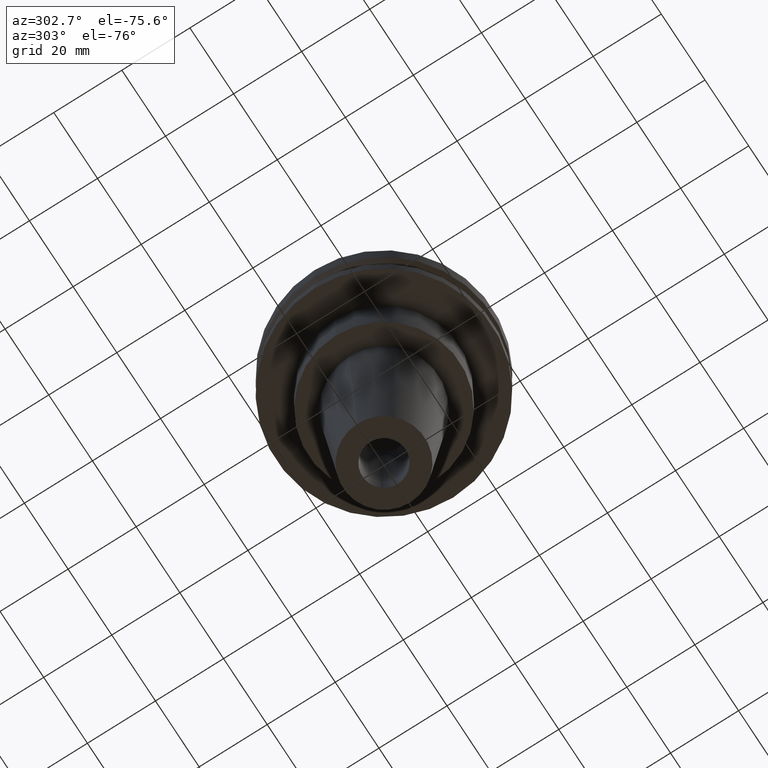
[diagram: clean part render]
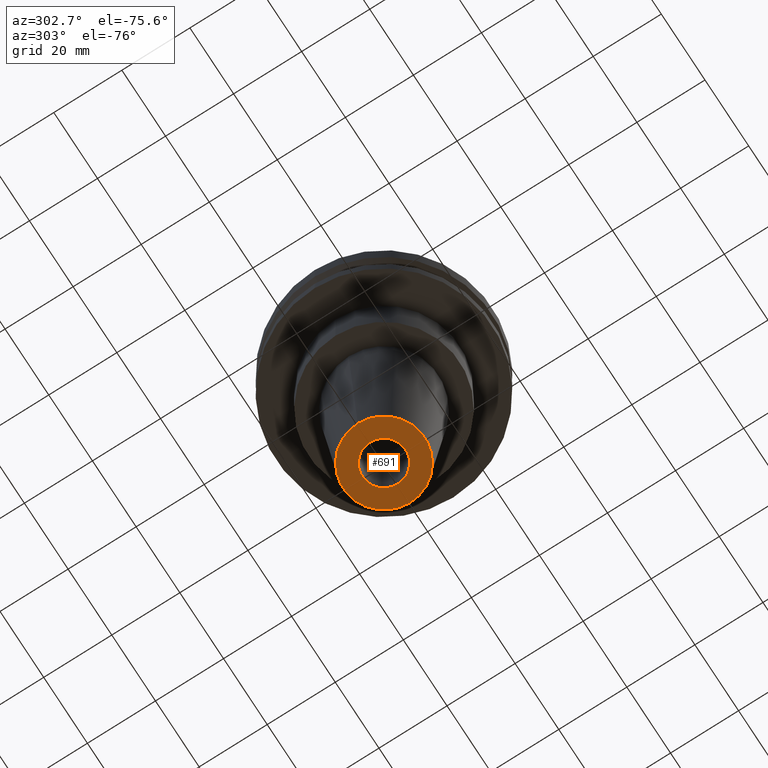
[diagram: same view with one face highlighted and labeled with its STEP entity id]
A machine part, auxiliary view. The second image highlights one B-rep face of the part: STEP entity #691.
In plain terms, the highlighted planar face has unit normal (0, -0, 1).
Its self-contained STEP definition (entity closure, byte-faithful):
#29 = VERTEX_POINT ( 'NONE', #834 ) ;
#37 = ORIENTED_EDGE ( 'NONE', *, *, #390, .T. ) ;
#60 = EDGE_CURVE ( 'NONE', #372, #29, #399, .T. ) ;
#109 = ORIENTED_EDGE ( 'NONE', *, *, #60, .T. ) ;
#116 = CARTESIAN_POINT ( 'NONE',  ( 0.000000000000000000, 0.000000000000000000, -88.89999999999999147 ) ) ;
#141 = PLANE ( 'NONE',  #490 ) ;
#144 = DIRECTION ( 'NONE',  ( 1.000000000000000000, 0.000000000000000000, 0.000000000000000000 ) ) ;
#158 = DIRECTION ( 'NONE',  ( -0.000000000000000000, -0.000000000000000000, 1.000000000000000000 ) ) ;
#161 = CARTESIAN_POINT ( 'NONE',  ( 12.00000000000000000, 0.000000000000000000, -88.89999999999999147 ) ) ;
#172 = CARTESIAN_POINT ( 'NONE',  ( 0.000000000000000000, 0.000000000000000000, -88.89999999999999147 ) ) ;
#271 = DIRECTION ( 'NONE',  ( -0.000000000000000000, -0.000000000000000000, 1.000000000000000000 ) ) ;
#274 = AXIS2_PLACEMENT_3D ( 'NONE', #116, #271, #454 ) ;
#290 = DIRECTION ( 'NONE',  ( 1.000000000000000000, 0.000000000000000000, 0.000000000000000000 ) ) ;
#323 = DIRECTION ( 'NONE',  ( -0.000000000000000000, -0.000000000000000000, 1.000000000000000000 ) ) ;
#345 = FACE_OUTER_BOUND ( 'NONE', #643, .T. ) ;
#354 = CIRCLE ( 'NONE', #274, 12.00000000000000000 ) ;
#372 = VERTEX_POINT ( 'NONE', #819 ) ;
#390 = EDGE_CURVE ( 'NONE', #29, #372, #519, .T. ) ;
#394 = AXIS2_PLACEMENT_3D ( 'NONE', #604, #158, #144 ) ;
#399 = CIRCLE ( 'NONE', #743, 6.349999999999999645 ) ;
#417 = ORIENTED_EDGE ( 'NONE', *, *, #709, .F. ) ;
#454 = DIRECTION ( 'NONE',  ( 1.000000000000000000, 0.000000000000000000, 0.000000000000000000 ) ) ;
#470 = CARTESIAN_POINT ( 'NONE',  ( 0.000000000000000000, 12.00000000000000000, -88.89999999999999147 ) ) ;
#490 = AXIS2_PLACEMENT_3D ( 'NONE', #470, #609, #290 ) ;
#504 = CIRCLE ( 'NONE', #394, 12.00000000000000000 ) ;
#519 = CIRCLE ( 'NONE', #737, 6.349999999999999645 ) ;
#548 = EDGE_LOOP ( 'NONE', ( #109, #37 ) ) ;
#604 = CARTESIAN_POINT ( 'NONE',  ( 0.000000000000000000, 0.000000000000000000, -88.89999999999999147 ) ) ;
#605 = ORIENTED_EDGE ( 'NONE', *, *, #629, .F. ) ;
#609 = DIRECTION ( 'NONE',  ( 0.000000000000000000, -0.000000000000000000, 1.000000000000000000 ) ) ;
#629 = EDGE_CURVE ( 'NONE', #826, #789, #354, .T. ) ;
#634 = DIRECTION ( 'NONE',  ( 1.000000000000000000, 0.000000000000000000, 0.000000000000000000 ) ) ;
#643 = EDGE_LOOP ( 'NONE', ( #605, #417 ) ) ;
#691 = ADVANCED_FACE ( 'NONE', ( #345, #803 ), #141, .F. ) ;
#701 = DIRECTION ( 'NONE',  ( 1.000000000000000000, 0.000000000000000000, 0.000000000000000000 ) ) ;
#709 = EDGE_CURVE ( 'NONE', #789, #826, #504, .T. ) ;
#737 = AXIS2_PLACEMENT_3D ( 'NONE', #172, #829, #634 ) ;
#742 = CARTESIAN_POINT ( 'NONE',  ( -12.00000000000000000, 1.714505518806294638E-15, -88.89999999999999147 ) ) ;
#743 = AXIS2_PLACEMENT_3D ( 'NONE', #776, #323, #701 ) ;
#776 = CARTESIAN_POINT ( 'NONE',  ( 0.000000000000000000, 0.000000000000000000, -88.89999999999999147 ) ) ;
#789 = VERTEX_POINT ( 'NONE', #742 ) ;
#803 = FACE_BOUND ( 'NONE', #548, .T. ) ;
#819 = CARTESIAN_POINT ( 'NONE',  ( 6.349999999999999645, 0.000000000000000000, -88.89999999999999147 ) ) ;
#826 = VERTEX_POINT ( 'NONE', #161 ) ;
#829 = DIRECTION ( 'NONE',  ( -0.000000000000000000, -0.000000000000000000, 1.000000000000000000 ) ) ;
#834 = CARTESIAN_POINT ( 'NONE',  ( -6.349999999999999645, 7.776507174585693149E-16, -88.89999999999999147 ) ) ;